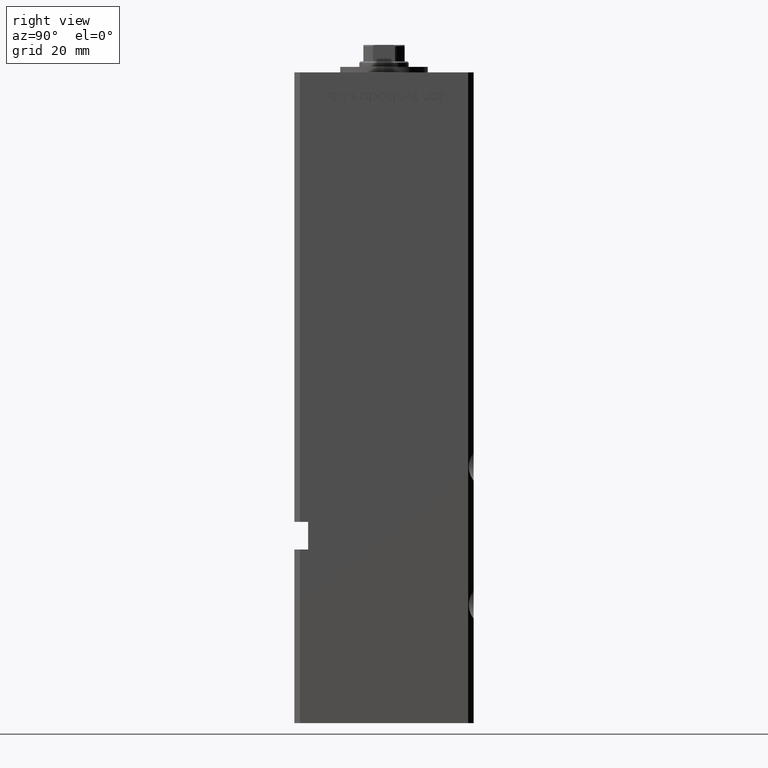
[diagram: clean part render]
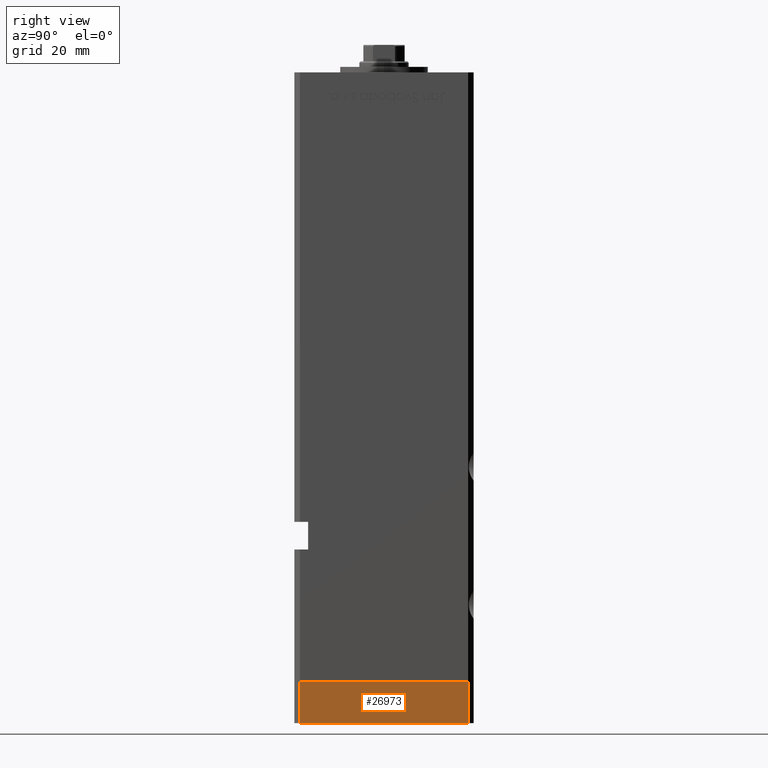
[diagram: same view with one face highlighted and labeled with its STEP entity id]
A machine part, right view. The second image highlights one B-rep face of the part: STEP entity #26973.
In plain terms, the highlighted planar face has unit normal (1, 0, 0).
Its self-contained STEP definition (entity closure, byte-faithful):
#22 = LINE ( 'NONE', #16420, #16592 ) ;
#1424 = EDGE_CURVE ( 'NONE', #21193, #8625, #34704, .T. ) ;
#1721 = EDGE_CURVE ( 'NONE', #41687, #15123, #20087, .T. ) ;
#3168 = DIRECTION ( 'NONE',  ( 0.000000000000000000, 0.000000000000000000, 1.000000000000000000 ) ) ;
#4244 = DIRECTION ( 'NONE',  ( 4.550094363217855288E-16, -1.000000000000000000, 0.000000000000000000 ) ) ;
#8200 = DIRECTION ( 'NONE',  ( -1.000000000000000000, -4.550094363217855288E-16, 0.000000000000000000 ) ) ;
#8625 = VERTEX_POINT ( 'NONE', #22977 ) ;
#8761 = VECTOR ( 'NONE', #3168, 1000.000000000000000 ) ;
#9066 = CARTESIAN_POINT ( 'NONE',  ( -37.50000000000001421, 30.49999999999998579, 0.000000000000000000 ) ) ;
#10672 = EDGE_LOOP ( 'NONE', ( #32590, #44832, #49063, #18935 ) ) ;
#12240 = CARTESIAN_POINT ( 'NONE',  ( -37.50000000000001421, 30.49999999999998579, -15.00000000000000000 ) ) ;
#13081 = CARTESIAN_POINT ( 'NONE',  ( -37.50000000000001421, 30.49999999999998579, -15.00000000000000000 ) ) ;
#15123 = VERTEX_POINT ( 'NONE', #18299 ) ;
#16420 = CARTESIAN_POINT ( 'NONE',  ( -37.50000000000001421, 30.49999999999998579, -15.00000000000000000 ) ) ;
#16592 = VECTOR ( 'NONE', #20458, 1000.000000000000000 ) ;
#16886 = EDGE_CURVE ( 'NONE', #21193, #41687, #22, .T. ) ;
#18016 = CARTESIAN_POINT ( 'NONE',  ( -37.49999999999998579, -30.50000000000001421, -15.00000000000000000 ) ) ;
#18299 = CARTESIAN_POINT ( 'NONE',  ( -37.49999999999998579, -30.50000000000001421, 0.000000000000000000 ) ) ;
#18935 = ORIENTED_EDGE ( 'NONE', *, *, #1721, .T. ) ;
#20087 = LINE ( 'NONE', #31940, #8761 ) ;
#20458 = DIRECTION ( 'NONE',  ( 4.550094363217855288E-16, -1.000000000000000000, 0.000000000000000000 ) ) ;
#21193 = VERTEX_POINT ( 'NONE', #13081 ) ;
#22599 = CARTESIAN_POINT ( 'NONE',  ( -37.50000000000001421, 30.49999999999998579, -15.00000000000000000 ) ) ;
#22977 = CARTESIAN_POINT ( 'NONE',  ( -37.50000000000001421, 30.49999999999998579, 0.000000000000000000 ) ) ;
#24622 = DIRECTION ( 'NONE',  ( 4.550094363217855288E-16, -1.000000000000000000, 0.000000000000000000 ) ) ;
#26973 = ADVANCED_FACE ( 'NONE', ( #32697 ), #39968, .T. ) ;
#30406 = DIRECTION ( 'NONE',  ( 0.000000000000000000, 0.000000000000000000, 1.000000000000000000 ) ) ;
#31940 = CARTESIAN_POINT ( 'NONE',  ( -37.49999999999998579, -30.50000000000001421, -15.00000000000000000 ) ) ;
#32590 = ORIENTED_EDGE ( 'NONE', *, *, #39125, .F. ) ;
#32697 = FACE_OUTER_BOUND ( 'NONE', #10672, .T. ) ;
#34704 = LINE ( 'NONE', #22599, #45663 ) ;
#37861 = LINE ( 'NONE', #9066, #42873 ) ;
#39125 = EDGE_CURVE ( 'NONE', #8625, #15123, #37861, .T. ) ;
#39968 = PLANE ( 'NONE',  #50249 ) ;
#41687 = VERTEX_POINT ( 'NONE', #18016 ) ;
#42873 = VECTOR ( 'NONE', #4244, 1000.000000000000000 ) ;
#44832 = ORIENTED_EDGE ( 'NONE', *, *, #1424, .F. ) ;
#45663 = VECTOR ( 'NONE', #30406, 1000.000000000000000 ) ;
#49063 = ORIENTED_EDGE ( 'NONE', *, *, #16886, .T. ) ;
#50249 = AXIS2_PLACEMENT_3D ( 'NONE', #12240, #8200, #24622 ) ;